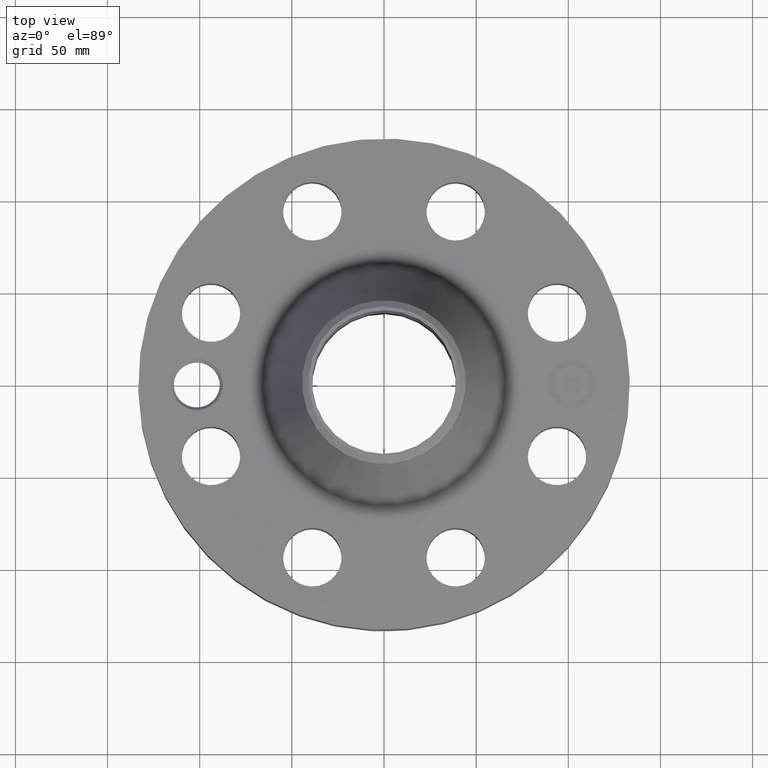
[diagram: clean part render]
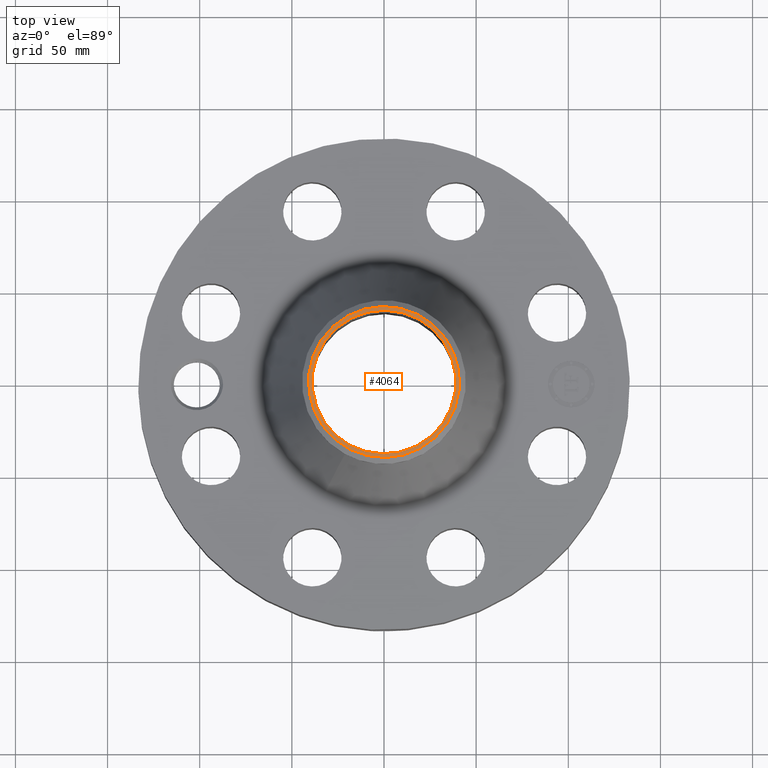
[diagram: same view with one face highlighted and labeled with its STEP entity id]
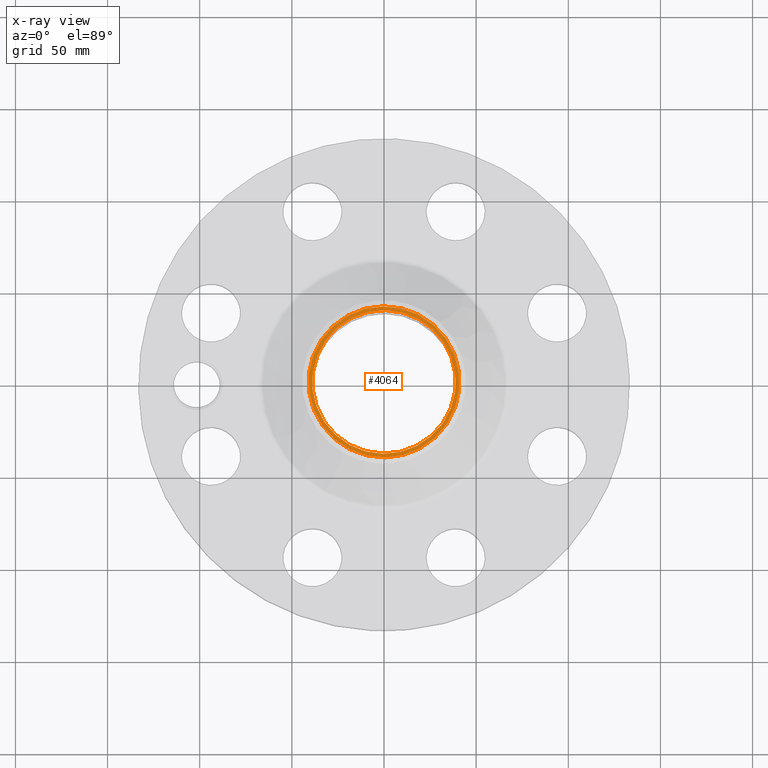
[diagram: x-ray of the same camera — body ghosted, the highlighted face saturated]
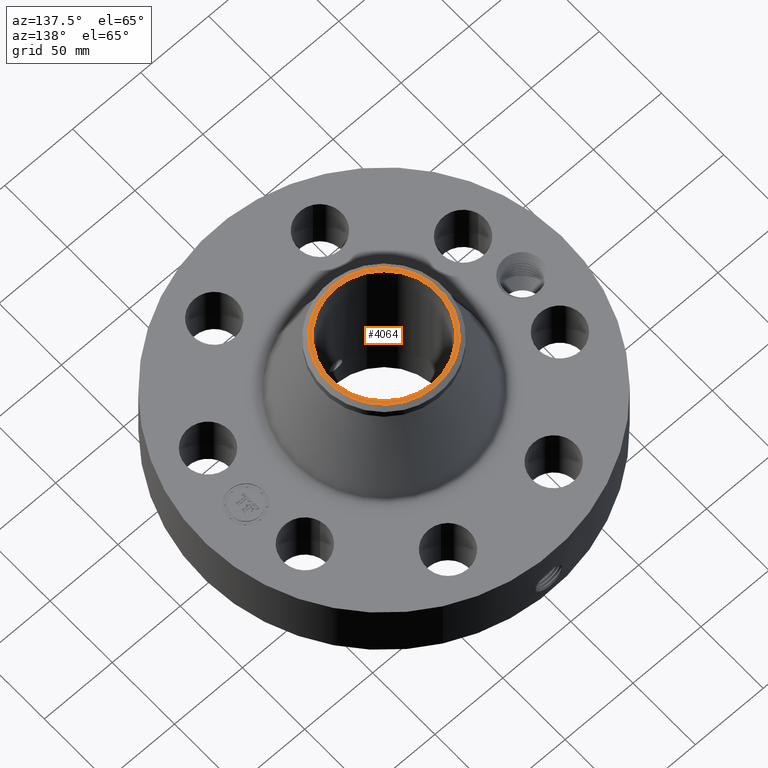
[diagram: same view with one face highlighted and labeled with its STEP entity id]
A machine part, top view. The second image highlights one B-rep face of the part: STEP entity #4064.
The next image is the same camera in x-ray: the body ghosted, the highlighted face saturated — about 0% of this face is hidden behind the body in this view.
A second angle (auxiliary view) of the same face is appended — the face is thin or edge-on in the first view.
In plain terms, the highlighted planar face has unit normal (0, 0, -1).
Its self-contained STEP definition (entity closure, byte-faithful):
#2883=AXIS2_PLACEMENT_3D('Circle Axis2P3D',#2881,#2882,$) ;
#2951=AXIS2_PLACEMENT_3D('Circle Axis2P3D',#2949,#2950,$) ;
#4040=AXIS2_PLACEMENT_3D('Plane Axis2P3D',#4037,#4038,#4039) ;
#4044=AXIS2_PLACEMENT_3D('Circle Axis2P3D',#4042,#4043,$) ;
#4053=AXIS2_PLACEMENT_3D('Circle Axis2P3D',#4051,#4052,$) ;
#2881=CARTESIAN_POINT('Axis2P3D Location',(0.,0.,4.87000000002)) ;
#2885=CARTESIAN_POINT('Vertex',(0.735438776222,1.34621164995,4.87000000002)) ;
#2887=CARTESIAN_POINT('Vertex',(-0.735438776222,-1.34621164995,4.87000000002)) ;
#2949=CARTESIAN_POINT('Axis2P3D Location',(0.,0.,4.87000000002)) ;
#4037=CARTESIAN_POINT('Axis2P3D Location',(0.,1.75000000001,4.87000000002)) ;
#4042=CARTESIAN_POINT('Axis2P3D Location',(0.,0.,4.87000000002)) ;
#4046=CARTESIAN_POINT('Vertex',(0.773188818632,-1.41531263907,4.87000000002)) ;
#4048=CARTESIAN_POINT('Vertex',(-0.773188818632,1.41531263907,4.87000000002)) ;
#4051=CARTESIAN_POINT('Axis2P3D Location',(0.,0.,4.87000000002)) ;
#2882=DIRECTION('Axis2P3D Direction',(0.,0.,-0.0393700787402)) ;
#2950=DIRECTION('Axis2P3D Direction',(0.,0.,-0.0393700787402)) ;
#4038=DIRECTION('Axis2P3D Direction',(0.,0.,-0.0393700787402)) ;
#4039=DIRECTION('Axis2P3D XDirection',(0.0393700787402,0.,0.)) ;
#4043=DIRECTION('Axis2P3D Direction',(0.,0.,-0.0393700787402)) ;
#4052=DIRECTION('Axis2P3D Direction',(0.,0.,-0.0393700787402)) ;
#4057=ORIENTED_EDGE('',*,*,#4050,.T.) ;
#4058=ORIENTED_EDGE('',*,*,#4055,.T.) ;
#4061=ORIENTED_EDGE('',*,*,#2953,.T.) ;
#4062=ORIENTED_EDGE('',*,*,#2889,.T.) ;
#4063=FACE_BOUND('',#4060,.T.) ;
#4064=ADVANCED_FACE('PartBody',(#4059,#4063),#4041,.F.) ;
#2884=CIRCLE('generated circle',#2883,1.53400000001) ;
#2952=CIRCLE('generated circle',#2951,1.53400000001) ;
#4045=CIRCLE('generated circle',#4044,1.61274015749) ;
#4054=CIRCLE('generated circle',#4053,1.61274015749) ;
#2889=EDGE_CURVE('',#2886,#2888,#2884,.T.) ;
#2953=EDGE_CURVE('',#2888,#2886,#2952,.T.) ;
#4050=EDGE_CURVE('',#4047,#4049,#4045,.F.) ;
#4055=EDGE_CURVE('',#4049,#4047,#4054,.F.) ;
#4056=EDGE_LOOP('',(#4057,#4058)) ;
#4060=EDGE_LOOP('',(#4061,#4062)) ;
#4059=FACE_OUTER_BOUND('',#4056,.T.) ;
#4041=PLANE('',#4040) ;
#2886=VERTEX_POINT('',#2885) ;
#2888=VERTEX_POINT('',#2887) ;
#4047=VERTEX_POINT('',#4046) ;
#4049=VERTEX_POINT('',#4048) ;